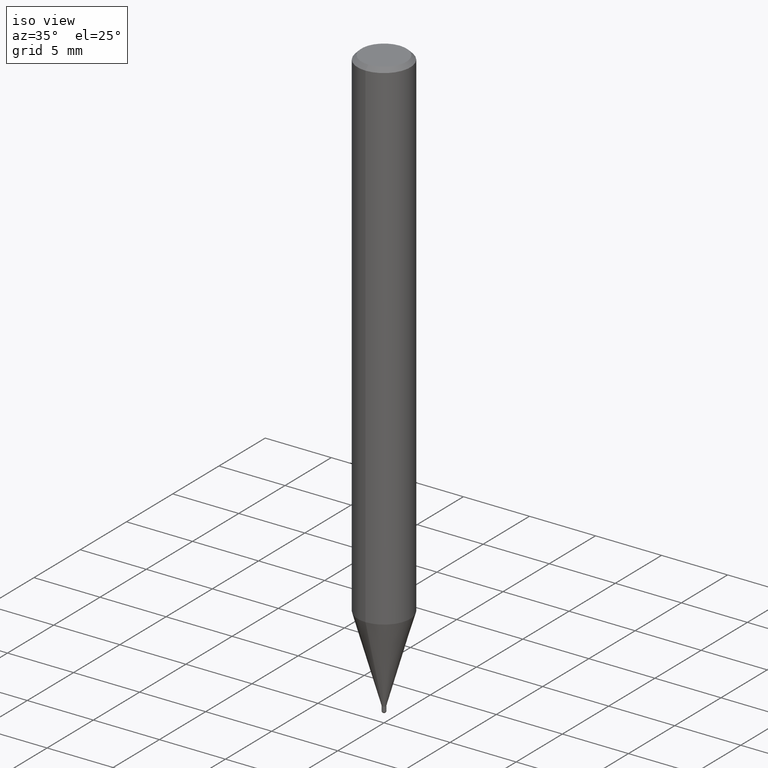
[diagram: clean part render]
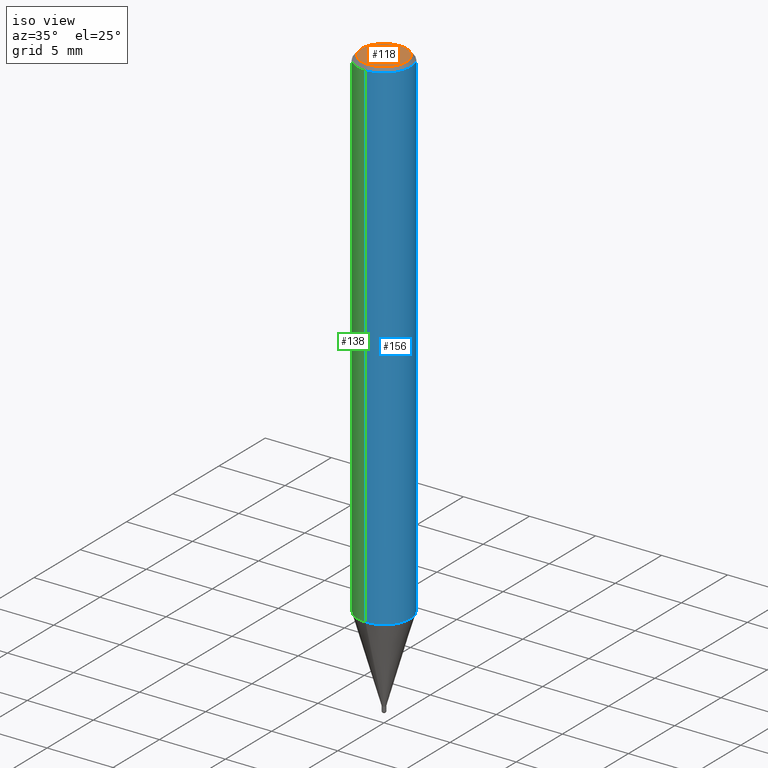
[diagram: same view with three faces highlighted in distinct colors, each labeled with its STEP entity id]
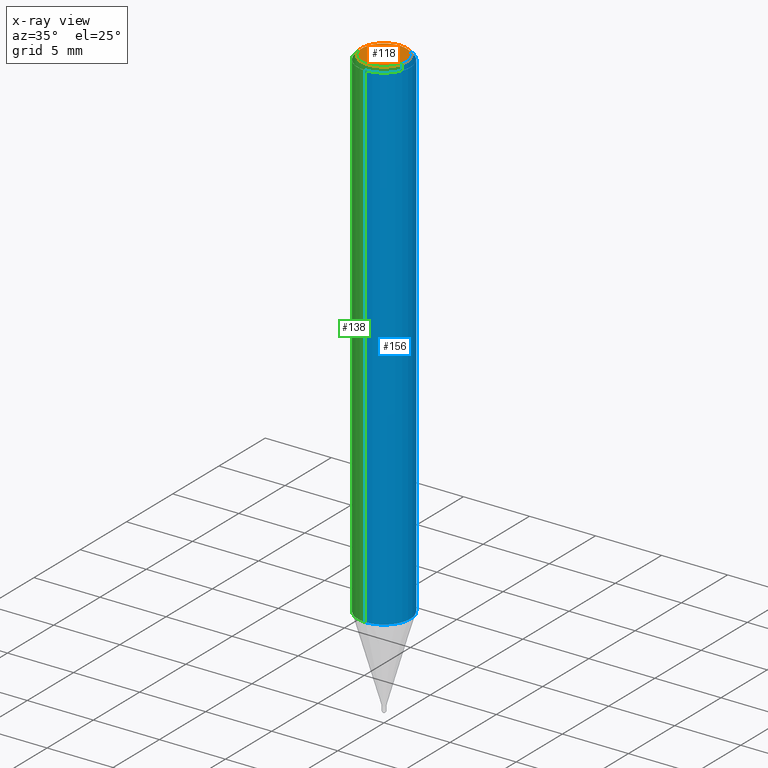
[diagram: x-ray of the same camera — body ghosted, the three highlighted faces saturated]
A machine part, iso view with three faces highlighted in distinct colors.
The next image is the same camera in x-ray (body ghosted, the three faces saturated) — at least one of them is partly hidden behind the body in this view.
Their STEP definitions:

[orange] entity #118 — the highlighted planar face has unit normal (-0, 0, 1).
#118=ADVANCED_FACE('',(#261),#262,.T.);
#136=EDGE_CURVE('',#208,#194,#281,.T.);
#172=EDGE_CURVE('',#194,#208,#322,.T.);
#194=VERTEX_POINT('',#350);
#208=VERTEX_POINT('',#366);
#261=FACE_OUTER_BOUND('',#418,.T.);
#262=PLANE('',#419);
#281=CIRCLE('',#444,1.7);
#322=CIRCLE('',#493,1.7);
#350=CARTESIAN_POINT('',(2.08183080149804E-016,-1.7,0.0));
#366=CARTESIAN_POINT('',(0.0,1.7,0.0));
#418=EDGE_LOOP('',(#585,#586));
#419=AXIS2_PLACEMENT_3D('',#587,#588,#589);
#444=AXIS2_PLACEMENT_3D('',#606,#607,#608);
#493=AXIS2_PLACEMENT_3D('',#666,#667,#668);
#585=ORIENTED_EDGE('',*,*,#136,.F.);
#586=ORIENTED_EDGE('',*,*,#172,.F.);
#587=CARTESIAN_POINT('',(0.0,0.85,0.0));
#588=DIRECTION('',(-0.0,0.0,1.0));
#589=DIRECTION('',(0.0,-1.0,0.0));
#606=CARTESIAN_POINT('',(0.0,0.0,0.0));
#607=DIRECTION('',(0.0,0.0,-1.0));
#608=DIRECTION('',(0.0,1.0,0.0));
#666=CARTESIAN_POINT('',(0.0,0.0,0.0));
#667=DIRECTION('',(0.0,0.0,-1.0));
#668=DIRECTION('',(0.0,1.0,0.0));

[blue] entity #156 — the highlighted cylindrical surface (edge-blend (fillet) strip) has radius 2 mm, axis along (-0, -0, 1).
#96=VERTEX_POINT('',#237);
#98=EDGE_CURVE('',#154,#96,#239,.T.);
#110=EDGE_CURVE('',#214,#182,#252,.T.);
#154=VERTEX_POINT('',#301);
#156=ADVANCED_FACE('',(#303),#304,.T.);
#182=VERTEX_POINT('',#335);
#196=EDGE_CURVE('',#154,#214,#352,.T.);
#210=EDGE_CURVE('',#182,#96,#368,.T.);
#214=VERTEX_POINT('',#372);
#237=CARTESIAN_POINT('',(2.44921270764475E-016,-2.0,-0.299999999999997));
#239=CIRCLE('',#390,2.0);
#252=CIRCLE('',#409,2.0);
#301=CARTESIAN_POINT('',(0.0,2.0,-0.299999999999997));
#303=FACE_OUTER_BOUND('',#474,.T.);
#304=CYLINDRICAL_SURFACE('',#475,2.0);
#335=CARTESIAN_POINT('',(2.44921270764475E-016,-2.0,-38.031));
#352=LINE('',#529,#530);
#368=LINE('',#550,#551);
#372=CARTESIAN_POINT('',(0.0,2.0,-38.031));
#390=AXIS2_PLACEMENT_3D('',#559,#560,#561);
#409=AXIS2_PLACEMENT_3D('',#575,#576,#577);
#474=EDGE_LOOP('',(#638,#639,#640,#641));
#475=AXIS2_PLACEMENT_3D('',#642,#643,#644);
#529=CARTESIAN_POINT('',(-2.44921270764475E-016,2.0,-19.1655));
#530=VECTOR('',#712,1.0);
#550=CARTESIAN_POINT('',(2.44921270764475E-016,-2.0,-19.1655));
#551=VECTOR('',#738,1.0);
#559=CARTESIAN_POINT('',(0.0,0.0,-0.299999999999997));
#560=DIRECTION('',(0.0,0.0,-1.0));
#561=DIRECTION('',(0.0,1.0,0.0));
#575=CARTESIAN_POINT('',(0.0,0.0,-38.031));
#576=DIRECTION('',(0.0,0.0,-1.0));
#577=DIRECTION('',(0.0,1.0,0.0));
#638=ORIENTED_EDGE('',*,*,#196,.F.);
#639=ORIENTED_EDGE('',*,*,#98,.T.);
#640=ORIENTED_EDGE('',*,*,#210,.F.);
#641=ORIENTED_EDGE('',*,*,#110,.F.);
#642=CARTESIAN_POINT('',(0.0,0.0,-19.1655));
#643=DIRECTION('',(-0.0,-0.0,1.0));
#644=DIRECTION('',(0.0,1.0,0.0));
#712=DIRECTION('',(0.0,0.0,-1.0));
#738=DIRECTION('',(-0.0,-0.0,1.0));

[green] entity #138 — the highlighted cylindrical surface (edge-blend (fillet) strip) has radius 2 mm, axis along (-0, -0, 1).
#96=VERTEX_POINT('',#237);
#100=EDGE_CURVE('',#96,#154,#241,.T.);
#138=ADVANCED_FACE('',(#283),#284,.T.);
#154=VERTEX_POINT('',#301);
#158=EDGE_CURVE('',#182,#214,#306,.T.);
#182=VERTEX_POINT('',#335);
#196=EDGE_CURVE('',#154,#214,#352,.T.);
#210=EDGE_CURVE('',#182,#96,#368,.T.);
#214=VERTEX_POINT('',#372);
#237=CARTESIAN_POINT('',(2.44921270764475E-016,-2.0,-0.299999999999997));
#241=CIRCLE('',#393,2.0);
#283=FACE_OUTER_BOUND('',#446,.T.);
#284=CYLINDRICAL_SURFACE('',#447,2.0);
#301=CARTESIAN_POINT('',(0.0,2.0,-0.299999999999997));
#306=CIRCLE('',#478,2.0);
#335=CARTESIAN_POINT('',(2.44921270764475E-016,-2.0,-38.031));
#352=LINE('',#529,#530);
#368=LINE('',#550,#551);
#372=CARTESIAN_POINT('',(0.0,2.0,-38.031));
#393=AXIS2_PLACEMENT_3D('',#562,#563,#564);
#446=EDGE_LOOP('',(#610,#611,#612,#613));
#447=AXIS2_PLACEMENT_3D('',#614,#615,#616);
#478=AXIS2_PLACEMENT_3D('',#645,#646,#647);
#529=CARTESIAN_POINT('',(-2.44921270764475E-016,2.0,-19.1655));
#530=VECTOR('',#712,1.0);
#550=CARTESIAN_POINT('',(2.44921270764475E-016,-2.0,-19.1655));
#551=VECTOR('',#738,1.0);
#562=CARTESIAN_POINT('',(0.0,0.0,-0.299999999999997));
#563=DIRECTION('',(0.0,0.0,-1.0));
#564=DIRECTION('',(0.0,1.0,0.0));
#610=ORIENTED_EDGE('',*,*,#196,.T.);
#611=ORIENTED_EDGE('',*,*,#158,.F.);
#612=ORIENTED_EDGE('',*,*,#210,.T.);
#613=ORIENTED_EDGE('',*,*,#100,.T.);
#614=CARTESIAN_POINT('',(0.0,0.0,-19.1655));
#615=DIRECTION('',(-0.0,-0.0,1.0));
#616=DIRECTION('',(0.0,1.0,0.0));
#645=CARTESIAN_POINT('',(0.0,0.0,-38.031));
#646=DIRECTION('',(0.0,0.0,-1.0));
#647=DIRECTION('',(0.0,1.0,0.0));
#712=DIRECTION('',(0.0,0.0,-1.0));
#738=DIRECTION('',(-0.0,-0.0,1.0));